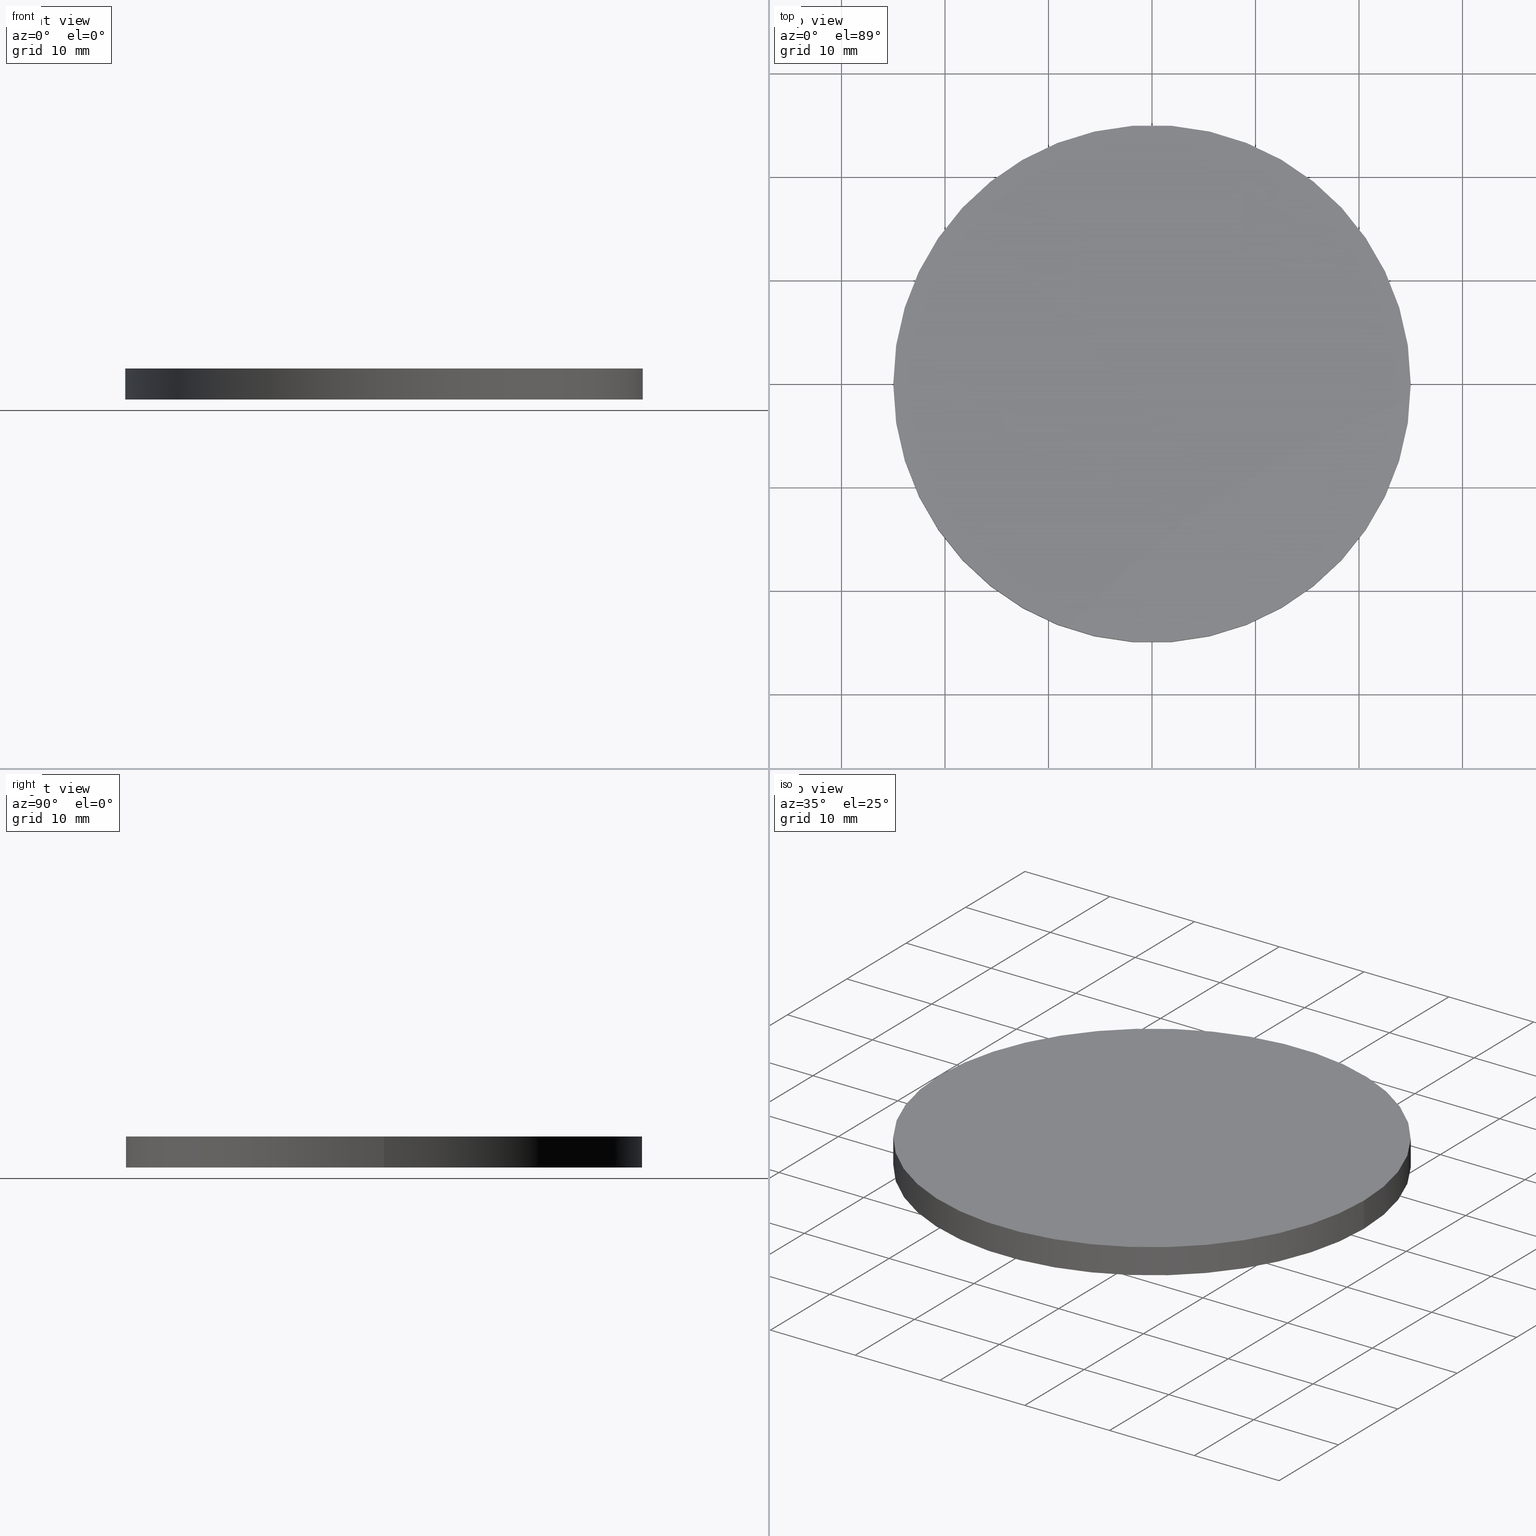
[diagram: canonical four-view strip — front | top / right | iso, engineering-drawing reading convention]
A machine part, canonical four-view strip (front | top / right | iso — engineering-drawing reading convention). The complete STEP part file that produces these views, byte-faithful:
ISO-10303-21;
HEADER;
FILE_DESCRIPTION (( 'STEP AP203' ),
    '1' );
FILE_NAME ('340528.STEP',
    '2019-07-30T07:42:45',
    ( '' ),
    ( '' ),
    'SwSTEP 2.0',
    'SolidWorks 2016',
    '' );
FILE_SCHEMA (( 'CONFIG_CONTROL_DESIGN' ));
ENDSEC;

DATA;
#1 = DIRECTION ( 'NONE',  ( 0.0000000000000000000, 0.0000000000000000000, 1.000000000000000000 ) ) ;
#2 = DATE_AND_TIME ( #202, #234 ) ;
#3 = ORIENTED_EDGE ( 'NONE', *, *, #140, .F. ) ;
#4 = APPLICATION_CONTEXT ( 'configuration controlled 3d designs of mechanical parts and assemblies' ) ;
#5 = APPLICATION_PROTOCOL_DEFINITION ( 'international standard', 'config_control_design', 1994, #76 ) ;
#6 = SECURITY_CLASSIFICATION ( '', '', #41 ) ;
#7 = AXIS2_PLACEMENT_3D ( 'NONE', #96, #1, #134 ) ;
#8 = APPROVAL_DATE_TIME ( #178, #233 ) ;
#9 = EDGE_CURVE ( 'NONE', #114, #68, #54, .T. ) ;
#10 = COORDINATED_UNIVERSAL_TIME_OFFSET ( 8, 0, .AHEAD. ) ;
#11 = ORIENTED_EDGE ( 'NONE', *, *, #28, .F. ) ;
#12 = COORDINATED_UNIVERSAL_TIME_OFFSET ( 8, 0, .AHEAD. ) ;
#13 = CARTESIAN_POINT ( 'NONE',  ( 25.00000000000000000, 3.061616997868383000E-015, 3.000000000000000000 ) ) ;
#14 = DIRECTION ( 'NONE',  ( -0.0000000000000000000, -0.0000000000000000000, -1.000000000000000000 ) ) ;
#15 = APPROVAL_PERSON_ORGANIZATION ( #51, #46, #181 ) ;
#16 = ORIENTED_EDGE ( 'NONE', *, *, #77, .F. ) ;
#17 = DIRECTION ( 'NONE',  ( 1.000000000000000000, 0.0000000000000000000, 0.0000000000000000000 ) ) ;
#18 = CC_DESIGN_PERSON_AND_ORGANIZATION_ASSIGNMENT ( #243, #61, ( #176 ) ) ;
#19 = CARTESIAN_POINT ( 'NONE',  ( 0.0000000000000000000, 0.0000000000000000000, 0.0000000000000000000 ) ) ;
#20 = COORDINATED_UNIVERSAL_TIME_OFFSET ( 8, 0, .AHEAD. ) ;
#21 = APPROVAL_STATUS ( 'not_yet_approved' ) ;
#22 = PERSON_AND_ORGANIZATION_ROLE ( 'creator' ) ;
#23 = AXIS2_PLACEMENT_3D ( 'NONE', #198, #14, #74 ) ;
#24 = APPROVAL_ROLE ( '' ) ;
#25 = PERSON_AND_ORGANIZATION ( #111, #137 ) ;
#26 = EDGE_LOOP ( 'NONE', ( #16, #211 ) ) ;
#27 = PERSON_AND_ORGANIZATION ( #111, #137 ) ;
#28 = EDGE_CURVE ( 'NONE', #114, #174, #184, .T. ) ;
#29 = PRODUCT_RELATED_PRODUCT_CATEGORY ( 'detail', '', ( #125 ) ) ;
#30 = APPROVAL_PERSON_ORGANIZATION ( #239, #166, #205 ) ;
#31 = ORIENTED_EDGE ( 'NONE', *, *, #251, .T. ) ;
#32 = CC_DESIGN_PERSON_AND_ORGANIZATION_ASSIGNMENT ( #25, #22, ( #209 ) ) ;
#33 = COORDINATED_UNIVERSAL_TIME_OFFSET ( 8, 0, .AHEAD. ) ;
#34 = APPROVAL_PERSON_ORGANIZATION ( #71, #97, #207 ) ;
#35 = DIRECTION ( 'NONE',  ( -0.0000000000000000000, -0.0000000000000000000, -1.000000000000000000 ) ) ;
#36 = CALENDAR_DATE ( 2019, 30, 7 ) ;
#37 = CARTESIAN_POINT ( 'NONE',  ( 25.00000000000000000, 3.061616997868383000E-015, 0.0000000000000000000 ) ) ;
#38 = PLANE ( 'NONE',  #56 ) ;
#39 = PERSON_AND_ORGANIZATION ( #111, #137 ) ;
#40 = AXIS2_PLACEMENT_3D ( 'NONE', #130, #154, #92 ) ;
#41 = SECURITY_CLASSIFICATION_LEVEL ( 'unclassified' ) ;
#42 = DATE_TIME_ROLE ( 'creation_date' ) ;
#43 = LOCAL_TIME ( 15, 42, 45.00000000000000000, #85 ) ;
#44 = DATE_TIME_ROLE ( 'creation_date' ) ;
#45 =( NAMED_UNIT ( * ) SI_UNIT ( $, .STERADIAN. ) SOLID_ANGLE_UNIT ( ) );
#46 = APPROVAL ( #242, 'δָ��' ) ;
#47 = CYLINDRICAL_SURFACE ( 'NONE', #167, 25.00000000000000000 ) ;
#48 = CALENDAR_DATE ( 2019, 30, 7 ) ;
#49 = ORIENTED_EDGE ( 'NONE', *, *, #28, .T. ) ;
#50 = CYLINDRICAL_SURFACE ( 'NONE', #23, 25.00000000000000000 ) ;
#51 = PERSON_AND_ORGANIZATION ( #111, #137 ) ;
#52 = ADVANCED_BREP_SHAPE_REPRESENTATION ( '340528', ( #148, #215 ), #197 ) ;
#53 = DIRECTION ( 'NONE',  ( -0.0000000000000000000, -0.0000000000000000000, -1.000000000000000000 ) ) ;
#54 = LINE ( 'NONE', #13, #91 ) ;
#55 = CC_DESIGN_APPROVAL ( #212, ( #209 ) ) ;
#56 = AXIS2_PLACEMENT_3D ( 'NONE', #238, #115, #131 ) ;
#57 = CARTESIAN_POINT ( 'NONE',  ( 25.00000000000000000, 3.061616997868383000E-015, 3.000000000000000000 ) ) ;
#58 = MECHANICAL_CONTEXT ( 'NONE', #76, 'mechanical' ) ;
#59 = CALENDAR_DATE ( 2019, 30, 7 ) ;
#60 = EDGE_LOOP ( 'NONE', ( #120, #145, #164, #250 ) ) ;
#61 = PERSON_AND_ORGANIZATION_ROLE ( 'design_supplier' ) ;
#62 = DATE_TIME_ROLE ( 'classification_date' ) ;
#63 = PERSON_AND_ORGANIZATION_ROLE ( 'design_supplier' ) ;
#64 = DATE_AND_TIME ( #116, #144 ) ;
#65 = AXIS2_PLACEMENT_3D ( 'NONE', #171, #253, #173 ) ;
#66 = CC_DESIGN_DATE_AND_TIME_ASSIGNMENT ( #64, #182, ( #6 ) ) ;
#67 = APPROVAL_PERSON_ORGANIZATION ( #90, #233, #201 ) ;
#68 = VERTEX_POINT ( 'NONE', #37 ) ;
#69 = CC_DESIGN_PERSON_AND_ORGANIZATION_ASSIGNMENT ( #194, #180, ( #125 ) ) ;
#70 = LOCAL_TIME ( 15, 42, 45.00000000000000000, #20 ) ;
#71 = PERSON_AND_ORGANIZATION ( #111, #137 ) ;
#72 = APPROVAL_DATE_TIME ( #244, #212 ) ;
#73 = CARTESIAN_POINT ( 'NONE',  ( 0.0000000000000000000, 0.0000000000000000000, 3.000000000000000000 ) ) ;
#74 = DIRECTION ( 'NONE',  ( -1.000000000000000000, 0.0000000000000000000, 0.0000000000000000000 ) ) ;
#75 = APPROVAL_DATE_TIME ( #136, #46 ) ;
#76 = APPLICATION_CONTEXT ( 'configuration controlled 3d designs of mechanical parts and assemblies' ) ;
#77 = EDGE_CURVE ( 'NONE', #157, #68, #213, .T. ) ;
#78 = PERSON_AND_ORGANIZATION_ROLE ( 'classification_officer' ) ;
#79 = DIRECTION ( 'NONE',  ( 0.0000000000000000000, 0.0000000000000000000, 1.000000000000000000 ) ) ;
#80 = CC_DESIGN_SECURITY_CLASSIFICATION ( #6, ( #151 ) ) ;
#81 = CALENDAR_DATE ( 2019, 30, 7 ) ;
#82 = FACE_OUTER_BOUND ( 'NONE', #203, .T. ) ;
#83 = APPROVAL_STATUS ( 'not_yet_approved' ) ;
#84 = PRODUCT_RELATED_PRODUCT_CATEGORY ( 'detail', '', ( #192 ) ) ;
#85 = COORDINATED_UNIVERSAL_TIME_OFFSET ( 8, 0, .AHEAD. ) ;
#86 = COORDINATED_UNIVERSAL_TIME_OFFSET ( 8, 0, .AHEAD. ) ;
#87 = LOCAL_TIME ( 15, 42, 45.00000000000000000, #123 ) ;
#88 = CC_DESIGN_DATE_AND_TIME_ASSIGNMENT ( #141, #62, ( #121 ) ) ;
#89 = EDGE_CURVE ( 'NONE', #68, #157, #153, .T. ) ;
#90 = PERSON_AND_ORGANIZATION ( #111, #137 ) ;
#91 = VECTOR ( 'NONE', #175, 1000.000000000000000 ) ;
#92 = DIRECTION ( 'NONE',  ( 1.000000000000000000, 0.0000000000000000000, 0.0000000000000000000 ) ) ;
#93 = PLANE ( 'NONE',  #187 ) ;
#94 = PRODUCT_DEFINITION ( 'δ֪', '', #151, #190 ) ;
#95 = CARTESIAN_POINT ( 'NONE',  ( -25.00000000000000000, 0.0000000000000000000, 0.0000000000000000000 ) ) ;
#96 = CARTESIAN_POINT ( 'NONE',  ( 0.0000000000000000000, 0.0000000000000000000, 3.000000000000000000 ) ) ;
#97 = APPROVAL ( #241, 'δָ��' ) ;
#98 = PERSON_AND_ORGANIZATION_ROLE ( 'classification_officer' ) ;
#99 = LOCAL_TIME ( 15, 42, 45.00000000000000000, #12 ) ;
#100 = FACE_OUTER_BOUND ( 'NONE', #232, .T. ) ;
#101 = DIRECTION ( 'NONE',  ( 0.0000000000000000000, 0.0000000000000000000, 1.000000000000000000 ) ) ;
#102 = MECHANICAL_CONTEXT ( 'NONE', #158, 'mechanical' ) ;
#103 = CC_DESIGN_APPROVAL ( #46, ( #121 ) ) ;
#104 = ORIENTED_EDGE ( 'NONE', *, *, #9, .T. ) ;
#105 = CALENDAR_DATE ( 2019, 30, 7 ) ;
#106 = LINE ( 'NONE', #219, #107 ) ;
#107 = VECTOR ( 'NONE', #35, 1000.000000000000000 ) ;
#108 = DATE_AND_TIME ( #105, #217 ) ;
#109 = CC_DESIGN_APPROVAL ( #97, ( #6 ) ) ;
#110 = ADVANCED_FACE ( 'NONE', ( #252 ), #50, .T. ) ;
#111 = PERSON ( 'δָ��', 'δָ��', 'δָ��', ('δָ��'), ('δָ��'), ('δָ��') ) ;
#112 = CC_DESIGN_APPROVAL ( #233, ( #94 ) ) ;
#113 = DIRECTION ( 'NONE',  ( 0.0000000000000000000, 0.0000000000000000000, 1.000000000000000000 ) ) ;
#114 = VERTEX_POINT ( 'NONE', #57 ) ;
#115 = DIRECTION ( 'NONE',  ( 0.0000000000000000000, 0.0000000000000000000, 1.000000000000000000 ) ) ;
#116 = CALENDAR_DATE ( 2019, 30, 7 ) ;
#117 = APPROVAL_ROLE ( '' ) ;
#118 =( NAMED_UNIT ( * ) PLANE_ANGLE_UNIT ( ) SI_UNIT ( $, .RADIAN. ) );
#119 = APPLICATION_PROTOCOL_DEFINITION ( 'international standard', 'config_control_design', 1994, #158 ) ;
#120 = ORIENTED_EDGE ( 'NONE', *, *, #9, .F. ) ;
#121 = SECURITY_CLASSIFICATION ( '', '', #135 ) ;
#122 = APPROVAL_DATE_TIME ( #172, #166 ) ;
#123 = COORDINATED_UNIVERSAL_TIME_OFFSET ( 8, 0, .AHEAD. ) ;
#124 = CC_DESIGN_PERSON_AND_ORGANIZATION_ASSIGNMENT ( #142, #222, ( #192 ) ) ;
#125 = PRODUCT ( '340528', '340528', '', ( #58 ) ) ;
#126 = PERSON_AND_ORGANIZATION ( #111, #137 ) ;
#127 = ADVANCED_FACE ( 'NONE', ( #100 ), #47, .T. ) ;
#128 = PERSON_AND_ORGANIZATION ( #111, #137 ) ;
#129 = ORIENTED_EDGE ( 'NONE', *, *, #89, .T. ) ;
#130 = CARTESIAN_POINT ( 'NONE',  ( 0.0000000000000000000, 0.0000000000000000000, 3.000000000000000000 ) ) ;
#131 = DIRECTION ( 'NONE',  ( 1.000000000000000000, 0.0000000000000000000, -0.0000000000000000000 ) ) ;
#132 = CC_DESIGN_DATE_AND_TIME_ASSIGNMENT ( #108, #44, ( #209 ) ) ;
#133 = COORDINATED_UNIVERSAL_TIME_OFFSET ( 8, 0, .AHEAD. ) ;
#134 = DIRECTION ( 'NONE',  ( 1.000000000000000000, 0.0000000000000000000, 0.0000000000000000000 ) ) ;
#135 = SECURITY_CLASSIFICATION_LEVEL ( 'unclassified' ) ;
#136 = DATE_AND_TIME ( #210, #231 ) ;
#137 = ORGANIZATION ( 'δָ��', 'δָ��', '' ) ;
#138 = PERSON_AND_ORGANIZATION_ROLE ( 'creator' ) ;
#139 = CC_DESIGN_PERSON_AND_ORGANIZATION_ASSIGNMENT ( #235, #200, ( #94 ) ) ;
#140 = EDGE_CURVE ( 'NONE', #174, #157, #106, .T. ) ;
#141 = DATE_AND_TIME ( #59, #70 ) ;
#142 = PERSON_AND_ORGANIZATION ( #111, #137 ) ;
#143 = APPROVAL ( #240, 'δָ��' ) ;
#144 = LOCAL_TIME ( 15, 42, 45.00000000000000000, #86 ) ;
#145 = ORIENTED_EDGE ( 'NONE', *, *, #251, .F. ) ;
#146 = ADVANCED_FACE ( 'NONE', ( #82 ), #93, .T. ) ;
#147 = CARTESIAN_POINT ( 'NONE',  ( 0.0000000000000000000, 0.0000000000000000000, 0.0000000000000000000 ) ) ;
#148 = MANIFOLD_SOLID_BREP ( '͹̨-����1', #168 ) ;
#149 = CARTESIAN_POINT ( 'NONE',  ( 0.0000000000000000000, 0.0000000000000000000, 3.000000000000000000 ) ) ;
#150 = ADVANCED_FACE ( 'NONE', ( #208 ), #38, .F. ) ;
#151 = PRODUCT_DEFINITION_FORMATION_WITH_SPECIFIED_SOURCE ( '�κ�', '', #125, .NOT_KNOWN. ) ;
#152 = CARTESIAN_POINT ( 'NONE',  ( 0.0000000000000000000, 0.0000000000000000000, 0.0000000000000000000 ) ) ;
#153 = CIRCLE ( 'NONE', #65, 25.00000000000000000 ) ;
#154 = DIRECTION ( 'NONE',  ( 0.0000000000000000000, 0.0000000000000000000, 1.000000000000000000 ) ) ;
#155 = APPROVAL_STATUS ( 'not_yet_approved' ) ;
#156 = COORDINATED_UNIVERSAL_TIME_OFFSET ( 8, 0, .AHEAD. ) ;
#157 = VERTEX_POINT ( 'NONE', #95 ) ;
#158 = APPLICATION_CONTEXT ( 'configuration controlled 3d designs of mechanical parts and assemblies' ) ;
#159 =( LENGTH_UNIT ( ) NAMED_UNIT ( * ) SI_UNIT ( .MILLI., .METRE. ) );
#160 = APPLICATION_PROTOCOL_DEFINITION ( 'international standard', 'config_control_design', 1994, #220 ) ;
#161 = APPROVAL_DATE_TIME ( #2, #143 ) ;
#162 = CC_DESIGN_PERSON_AND_ORGANIZATION_ASSIGNMENT ( #27, #185, ( #176 ) ) ;
#163 = CALENDAR_DATE ( 2019, 30, 7 ) ;
#164 = ORIENTED_EDGE ( 'NONE', *, *, #140, .T. ) ;
#165 = PRODUCT_DEFINITION_SHAPE ( 'NONE', 'NONE',  #209 ) ;
#166 = APPROVAL ( #155, 'δָ��' ) ;
#167 = AXIS2_PLACEMENT_3D ( 'NONE', #149, #53, #195 ) ;
#168 = CLOSED_SHELL ( 'NONE', ( #127, #110, #146, #150 ) ) ;
#169 = CALENDAR_DATE ( 2019, 30, 7 ) ;
#170 = AXIS2_PLACEMENT_3D ( 'NONE', #147, #177, #17 ) ;
#171 = CARTESIAN_POINT ( 'NONE',  ( 0.0000000000000000000, 0.0000000000000000000, 0.0000000000000000000 ) ) ;
#172 = DATE_AND_TIME ( #169, #188 ) ;
#173 = DIRECTION ( 'NONE',  ( 1.000000000000000000, 0.0000000000000000000, 0.0000000000000000000 ) ) ;
#174 = VERTEX_POINT ( 'NONE', #223 ) ;
#175 = DIRECTION ( 'NONE',  ( -0.0000000000000000000, -0.0000000000000000000, -1.000000000000000000 ) ) ;
#176 = PRODUCT_DEFINITION_FORMATION_WITH_SPECIFIED_SOURCE ( '�κ�', '', #192, .NOT_KNOWN. ) ;
#177 = DIRECTION ( 'NONE',  ( 0.0000000000000000000, 0.0000000000000000000, 1.000000000000000000 ) ) ;
#178 = DATE_AND_TIME ( #81, #43 ) ;
#179 = DIRECTION ( 'NONE',  ( 1.000000000000000000, 0.0000000000000000000, 0.0000000000000000000 ) ) ;
#180 = PERSON_AND_ORGANIZATION_ROLE ( 'design_owner' ) ;
#181 = APPROVAL_ROLE ( '' ) ;
#182 = DATE_TIME_ROLE ( 'classification_date' ) ;
#183 = DATE_AND_TIME ( #48, #99 ) ;
#184 = CIRCLE ( 'NONE', #40, 25.00000000000000000 ) ;
#185 = PERSON_AND_ORGANIZATION_ROLE ( 'creator' ) ;
#186 = CC_DESIGN_PERSON_AND_ORGANIZATION_ASSIGNMENT ( #214, #138, ( #151 ) ) ;
#187 = AXIS2_PLACEMENT_3D ( 'NONE', #73, #113, #199 ) ;
#188 = LOCAL_TIME ( 15, 42, 45.00000000000000000, #225 ) ;
#189 = APPROVAL_DATE_TIME ( #183, #97 ) ;
#190 = DESIGN_CONTEXT ( 'detailed design', #220, 'design' ) ;
#191 = CC_DESIGN_PERSON_AND_ORGANIZATION_ASSIGNMENT ( #249, #98, ( #121 ) ) ;
#192 = PRODUCT ( '340528', '340528', '', ( #102 ) ) ;
#193 = PERSON_AND_ORGANIZATION ( #111, #137 ) ;
#194 = PERSON_AND_ORGANIZATION ( #111, #137 ) ;
#195 = DIRECTION ( 'NONE',  ( -1.000000000000000000, 0.0000000000000000000, 0.0000000000000000000 ) ) ;
#196 = CC_DESIGN_PERSON_AND_ORGANIZATION_ASSIGNMENT ( #126, #63, ( #151 ) ) ;
#197 =( GEOMETRIC_REPRESENTATION_CONTEXT ( 3 ) GLOBAL_UNCERTAINTY_ASSIGNED_CONTEXT ( ( #206 ) ) GLOBAL_UNIT_ASSIGNED_CONTEXT ( ( #159, #118, #45 ) ) REPRESENTATION_CONTEXT ( 'NONE', 'WORKASPACE' ) );
#198 = CARTESIAN_POINT ( 'NONE',  ( 0.0000000000000000000, 0.0000000000000000000, 3.000000000000000000 ) ) ;
#199 = DIRECTION ( 'NONE',  ( 1.000000000000000000, 0.0000000000000000000, -0.0000000000000000000 ) ) ;
#200 = PERSON_AND_ORGANIZATION_ROLE ( 'creator' ) ;
#201 = APPROVAL_ROLE ( '' ) ;
#202 = CALENDAR_DATE ( 2019, 30, 7 ) ;
#203 = EDGE_LOOP ( 'NONE', ( #31, #49 ) ) ;
#204 = CC_DESIGN_PERSON_AND_ORGANIZATION_ASSIGNMENT ( #193, #78, ( #6 ) ) ;
#205 = APPROVAL_ROLE ( '' ) ;
#206 = UNCERTAINTY_MEASURE_WITH_UNIT (LENGTH_MEASURE( 1.000000000000000100E-005 ), #159, 'distance_accuracy_value', 'NONE');
#207 = APPROVAL_ROLE ( '' ) ;
#208 = FACE_OUTER_BOUND ( 'NONE', #26, .T. ) ;
#209 = PRODUCT_DEFINITION ( 'δ֪', '', #176, #230 ) ;
#210 = CALENDAR_DATE ( 2019, 30, 7 ) ;
#211 = ORIENTED_EDGE ( 'NONE', *, *, #89, .F. ) ;
#212 = APPROVAL ( #83, 'δָ��' ) ;
#213 = CIRCLE ( 'NONE', #170, 25.00000000000000000 ) ;
#214 = PERSON_AND_ORGANIZATION ( #111, #137 ) ;
#215 = AXIS2_PLACEMENT_3D ( 'NONE', #152, #79, #226 ) ;
#216 = PRODUCT_DEFINITION_SHAPE ( 'NONE', 'NONE',  #94 ) ;
#217 = LOCAL_TIME ( 15, 42, 45.00000000000000000, #10 ) ;
#218 = CC_DESIGN_APPROVAL ( #143, ( #176 ) ) ;
#219 = CARTESIAN_POINT ( 'NONE',  ( -25.00000000000000000, 0.0000000000000000000, 3.000000000000000000 ) ) ;
#220 = APPLICATION_CONTEXT ( 'configuration controlled 3d designs of mechanical parts and assemblies' ) ;
#221 = LOCAL_TIME ( 15, 42, 45.00000000000000000, #33 ) ;
#222 = PERSON_AND_ORGANIZATION_ROLE ( 'design_owner' ) ;
#223 = CARTESIAN_POINT ( 'NONE',  ( -25.00000000000000000, 0.0000000000000000000, 3.000000000000000000 ) ) ;
#224 = APPLICATION_PROTOCOL_DEFINITION ( 'international standard', 'config_control_design', 1994, #4 ) ;
#225 = COORDINATED_UNIVERSAL_TIME_OFFSET ( 8, 0, .AHEAD. ) ;
#226 = DIRECTION ( 'NONE',  ( 1.000000000000000000, 0.0000000000000000000, 0.0000000000000000000 ) ) ;
#227 = CC_DESIGN_APPROVAL ( #166, ( #151 ) ) ;
#228 = AXIS2_PLACEMENT_3D ( 'NONE', #19, #101, #179 ) ;
#229 = DATE_AND_TIME ( #163, #221 ) ;
#230 = DESIGN_CONTEXT ( 'detailed design', #4, 'design' ) ;
#231 = LOCAL_TIME ( 15, 42, 45.00000000000000000, #133 ) ;
#232 = EDGE_LOOP ( 'NONE', ( #11, #104, #129, #3 ) ) ;
#233 = APPROVAL ( #21, 'δָ��' ) ;
#234 = LOCAL_TIME ( 15, 42, 45.00000000000000000, #156 ) ;
#235 = PERSON_AND_ORGANIZATION ( #111, #137 ) ;
#236 = SHAPE_DEFINITION_REPRESENTATION ( #216, #52 ) ;
#237 = CC_DESIGN_SECURITY_CLASSIFICATION ( #121, ( #176 ) ) ;
#238 = CARTESIAN_POINT ( 'NONE',  ( 0.0000000000000000000, 0.0000000000000000000, 0.0000000000000000000 ) ) ;
#239 = PERSON_AND_ORGANIZATION ( #111, #137 ) ;
#240 = APPROVAL_STATUS ( 'not_yet_approved' ) ;
#241 = APPROVAL_STATUS ( 'not_yet_approved' ) ;
#242 = APPROVAL_STATUS ( 'not_yet_approved' ) ;
#243 = PERSON_AND_ORGANIZATION ( #111, #137 ) ;
#244 = DATE_AND_TIME ( #36, #87 ) ;
#245 = APPROVAL_PERSON_ORGANIZATION ( #39, #212, #24 ) ;
#246 = APPROVAL_PERSON_ORGANIZATION ( #128, #143, #117 ) ;
#247 = CIRCLE ( 'NONE', #7, 25.00000000000000000 ) ;
#248 = CC_DESIGN_DATE_AND_TIME_ASSIGNMENT ( #229, #42, ( #94 ) ) ;
#249 = PERSON_AND_ORGANIZATION ( #111, #137 ) ;
#250 = ORIENTED_EDGE ( 'NONE', *, *, #77, .T. ) ;
#251 = EDGE_CURVE ( 'NONE', #174, #114, #247, .T. ) ;
#252 = FACE_OUTER_BOUND ( 'NONE', #60, .T. ) ;
#253 = DIRECTION ( 'NONE',  ( 0.0000000000000000000, 0.0000000000000000000, 1.000000000000000000 ) ) ;
ENDSEC;
END-ISO-10303-21;
